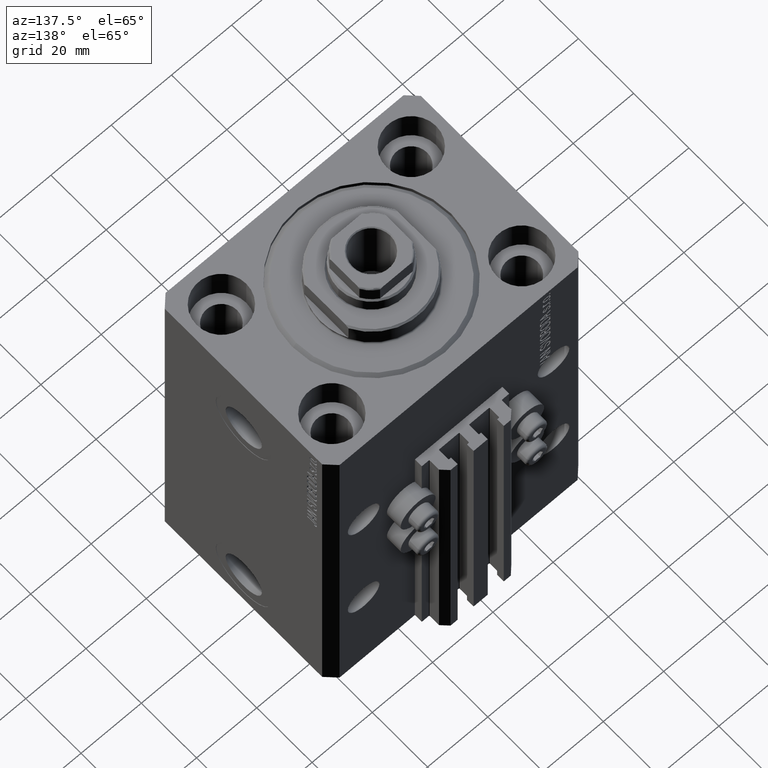
[diagram: clean part render]
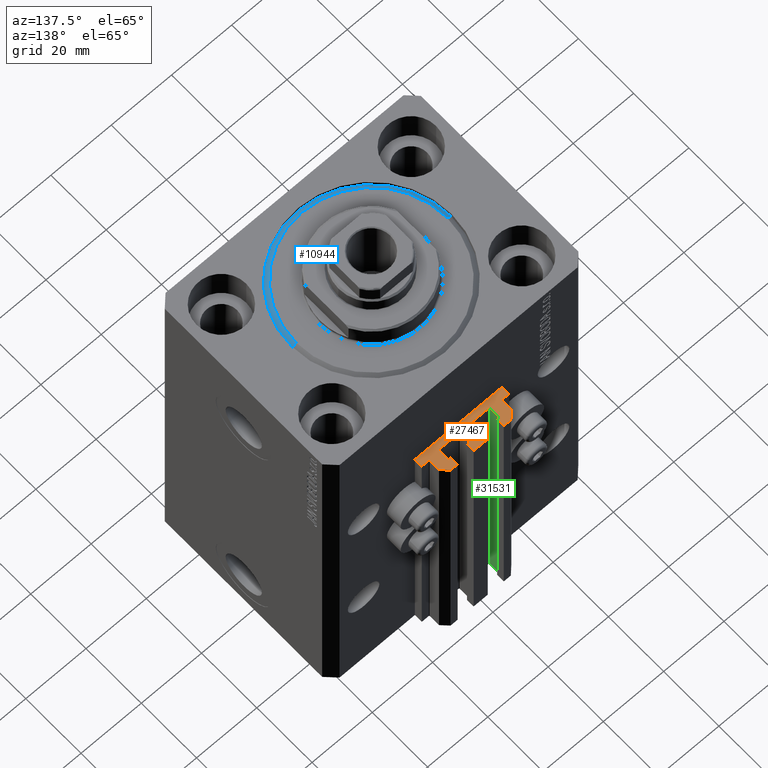
[diagram: same view with three faces highlighted in distinct colors, each labeled with its STEP entity id]
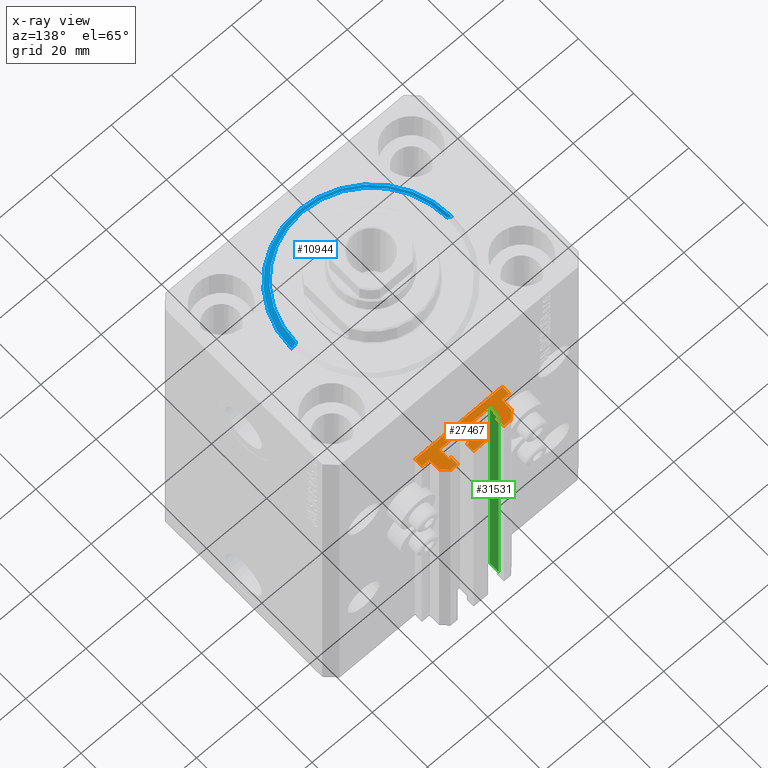
[diagram: x-ray of the same camera — body ghosted, the three highlighted faces saturated]
A machine part, auxiliary view with three faces highlighted in distinct colors.
The next image is the same camera in x-ray (body ghosted, the three faces saturated) — at least one of them is partly hidden behind the body in this view.
Their STEP definitions:

[orange] entity #27467 — the highlighted planar face has unit normal (0, 0, 1).
#34 = CIRCLE ( 'NONE', #22517, 0.1999999999999996503 ) ;
#104 = VECTOR ( 'NONE', #128, 1000.000000000000000 ) ;
#128 = DIRECTION ( 'NONE',  ( -1.000000000000000000, 0.000000000000000000, 0.000000000000000000 ) ) ;
#564 = CARTESIAN_POINT ( 'NONE',  ( -12.20000000000000107, 33.99999999999998579, -33.00000000000000000 ) ) ;
#873 = ORIENTED_EDGE ( 'NONE', *, *, #39922, .F. ) ;
#1253 = ORIENTED_EDGE ( 'NONE', *, *, #28621, .T. ) ;
#1461 = VERTEX_POINT ( 'NONE', #44052 ) ;
#1554 = EDGE_CURVE ( 'NONE', #22786, #31319, #45975, .T. ) ;
#1580 = CARTESIAN_POINT ( 'NONE',  ( 2.349999999999999645, 37.10000000000000853, -33.00000000000000000 ) ) ;
#1654 = VERTEX_POINT ( 'NONE', #17257 ) ;
#1890 = VECTOR ( 'NONE', #25414, 1000.000000000000000 ) ;
#2167 = CARTESIAN_POINT ( 'NONE',  ( 7.649999999999998579, 39.50000000000002132, -33.00000000000000000 ) ) ;
#2306 = DIRECTION ( 'NONE',  ( 0.000000000000000000, 1.000000000000000000, 0.000000000000000000 ) ) ;
#2311 = DIRECTION ( 'NONE',  ( 1.000000000000000000, 0.000000000000000000, 0.000000000000000000 ) ) ;
#2381 = EDGE_CURVE ( 'NONE', #34654, #41135, #37789, .T. ) ;
#2391 = CARTESIAN_POINT ( 'NONE',  ( -1.800000000000000933, 33.70000000000000284, -33.00000000000000000 ) ) ;
#2550 = CARTESIAN_POINT ( 'NONE',  ( 7.649999999999998579, 39.50000000000002132, -33.00000000000000000 ) ) ;
#3139 = FACE_OUTER_BOUND ( 'NONE', #33289, .T. ) ;
#3193 = CARTESIAN_POINT ( 'NONE',  ( 1.600000000000000533, 36.90000000000000568, -33.00000000000000000 ) ) ;
#3740 = DIRECTION ( 'NONE',  ( -1.000000000000000000, 0.000000000000000000, 0.000000000000000000 ) ) ;
#4052 = LINE ( 'NONE', #11824, #38299 ) ;
#4413 = DIRECTION ( 'NONE',  ( 0.000000000000000000, 1.000000000000000000, 0.000000000000000000 ) ) ;
#4427 = VECTOR ( 'NONE', #22873, 1000.000000000000000 ) ;
#4650 = LINE ( 'NONE', #45257, #35884 ) ;
#4674 = VERTEX_POINT ( 'NONE', #16666 ) ;
#4761 = CARTESIAN_POINT ( 'NONE',  ( -1.800000000000000933, 33.50000000000000000, -33.00000000000000000 ) ) ;
#4879 = DIRECTION ( 'NONE',  ( 0.000000000000000000, -1.000000000000000000, 0.000000000000000000 ) ) ;
#5132 = CARTESIAN_POINT ( 'NONE',  ( 12.00000000000000000, 37.50000000000002132, -33.00000000000000000 ) ) ;
#5292 = LINE ( 'NONE', #35912, #19699 ) ;
#5623 = VECTOR ( 'NONE', #38216, 1000.000000000000114 ) ;
#5629 = EDGE_CURVE ( 'NONE', #1461, #28818, #42952, .T. ) ;
#5708 = VECTOR ( 'NONE', #10399, 1000.000000000000000 ) ;
#5766 = CARTESIAN_POINT ( 'NONE',  ( 1.800000000000000933, 37.10000000000000853, -33.00000000000000000 ) ) ;
#5990 = CARTESIAN_POINT ( 'NONE',  ( -2.350000000000003642, 39.50000000000000711, -33.00000000000000000 ) ) ;
#6078 = CARTESIAN_POINT ( 'NONE',  ( 2.349999999999999645, 37.10000000000000853, -33.00000000000000000 ) ) ;
#6305 = ORIENTED_EDGE ( 'NONE', *, *, #8533, .T. ) ;
#6401 = DIRECTION ( 'NONE',  ( 1.000000000000000000, 0.000000000000000000, 0.000000000000000000 ) ) ;
#6437 = DIRECTION ( 'NONE',  ( 0.000000000000000000, 0.000000000000000000, 1.000000000000000000 ) ) ;
#6442 = VECTOR ( 'NONE', #35210, 1000.000000000000000 ) ;
#6529 = ORIENTED_EDGE ( 'NONE', *, *, #31338, .T. ) ;
#6534 = CIRCLE ( 'NONE', #46142, 0.2000000000000040079 ) ;
#6932 = VECTOR ( 'NONE', #2311, 1000.000000000000000 ) ;
#7225 = EDGE_CURVE ( 'NONE', #40958, #27081, #20187, .T. ) ;
#7345 = CARTESIAN_POINT ( 'NONE',  ( -1.600000000000000533, 36.90000000000000568, -33.00000000000000000 ) ) ;
#7483 = EDGE_CURVE ( 'NONE', #38278, #28818, #12305, .T. ) ;
#7489 = CIRCLE ( 'NONE', #30003, 0.1999999999999987899 ) ;
#7618 = ORIENTED_EDGE ( 'NONE', *, *, #39048, .T. ) ;
#8053 = CARTESIAN_POINT ( 'NONE',  ( -2.350000000000003197, 37.10000000000000853, -33.00000000000000000 ) ) ;
#8533 = EDGE_CURVE ( 'NONE', #33669, #46460, #37331, .T. ) ;
#8562 = VERTEX_POINT ( 'NONE', #17104 ) ;
#8761 = EDGE_CURVE ( 'NONE', #29670, #19595, #28782, .T. ) ;
#8773 = CARTESIAN_POINT ( 'NONE',  ( 2.349999999999999645, 39.50000000000000711, -33.00000000000000000 ) ) ;
#9507 = VERTEX_POINT ( 'NONE', #45657 ) ;
#9842 = DIRECTION ( 'NONE',  ( 1.000000000000000000, 0.000000000000000000, 0.000000000000000000 ) ) ;
#10006 = ORIENTED_EDGE ( 'NONE', *, *, #8761, .F. ) ;
#10383 = EDGE_CURVE ( 'NONE', #19556, #27674, #24723, .T. ) ;
#10399 = DIRECTION ( 'NONE',  ( 0.000000000000000000, -1.000000000000000000, 0.000000000000000000 ) ) ;
#10408 = VECTOR ( 'NONE', #46825, 1000.000000000000000 ) ;
#10417 = CARTESIAN_POINT ( 'NONE',  ( -8.199999999999999289, 37.09999999999999432, -33.00000000000000000 ) ) ;
#10800 = DIRECTION ( 'NONE',  ( 0.000000000000000000, 0.000000000000000000, 1.000000000000000000 ) ) ;
#11102 = DIRECTION ( 'NONE',  ( -5.421010862427508365E-16, -1.000000000000000000, 0.000000000000000000 ) ) ;
#11258 = CARTESIAN_POINT ( 'NONE',  ( 7.649999999999998579, 37.10000000000002274, -33.00000000000000000 ) ) ;
#11542 = DIRECTION ( 'NONE',  ( 0.000000000000000000, 0.000000000000000000, 1.000000000000000000 ) ) ;
#11739 = VERTEX_POINT ( 'NONE', #14384 ) ;
#11820 = EDGE_CURVE ( 'NONE', #4674, #24418, #4650, .T. ) ;
#11824 = CARTESIAN_POINT ( 'NONE',  ( 8.400000000000000355, 36.90000000000001279, -33.00000000000000000 ) ) ;
#11826 = VERTEX_POINT ( 'NONE', #15580 ) ;
#11875 = DIRECTION ( 'NONE',  ( 0.000000000000000000, 0.000000000000000000, 1.000000000000000000 ) ) ;
#11943 = EDGE_CURVE ( 'NONE', #30417, #1654, #27476, .T. ) ;
#12305 = LINE ( 'NONE', #1580, #45044 ) ;
#12373 = LINE ( 'NONE', #23543, #23713 ) ;
#12453 = EDGE_CURVE ( 'NONE', #45040, #11739, #32012, .T. ) ;
#12566 = CARTESIAN_POINT ( 'NONE',  ( -8.399999999999996803, 33.70000000000000284, -33.00000000000000000 ) ) ;
#12747 = LINE ( 'NONE', #23912, #23552 ) ;
#12757 = ORIENTED_EDGE ( 'NONE', *, *, #19025, .T. ) ;
#12807 = DIRECTION ( 'NONE',  ( -1.084202172485506406E-15, 1.000000000000000000, 0.000000000000000000 ) ) ;
#12891 = LINE ( 'NONE', #2167, #42735 ) ;
#13184 = DIRECTION ( 'NONE',  ( -0.7071067811865472397, -0.7071067811865479058, 0.000000000000000000 ) ) ;
#13259 = CARTESIAN_POINT ( 'NONE',  ( -1.800000000000000933, 36.90000000000000568, -33.00000000000000000 ) ) ;
#13262 = EDGE_CURVE ( 'NONE', #20999, #27674, #46808, .T. ) ;
#13562 = CARTESIAN_POINT ( 'NONE',  ( 1.600000000000000533, 33.70000000000000284, -33.00000000000000000 ) ) ;
#13572 = VECTOR ( 'NONE', #13184, 999.9999999999998863 ) ;
#13805 = CARTESIAN_POINT ( 'NONE',  ( 12.20000000000000107, 34.20000000000002416, -33.00000000000000000 ) ) ;
#13858 = VERTEX_POINT ( 'NONE', #19892 ) ;
#13952 = EDGE_CURVE ( 'NONE', #24968, #40041, #42765, .T. ) ;
#13993 = EDGE_CURVE ( 'NONE', #14417, #27081, #28374, .T. ) ;
#14066 = LINE ( 'NONE', #10417, #21128 ) ;
#14384 = CARTESIAN_POINT ( 'NONE',  ( 8.200000000000001066, 37.10000000000002274, -33.00000000000000000 ) ) ;
#14417 = VERTEX_POINT ( 'NONE', #47555 ) ;
#14431 = CARTESIAN_POINT ( 'NONE',  ( -8.199999999999997513, 33.70000000000000284, -33.00000000000000000 ) ) ;
#14498 = DIRECTION ( 'NONE',  ( 0.000000000000000000, 0.000000000000000000, 1.000000000000000000 ) ) ;
#14929 = AXIS2_PLACEMENT_3D ( 'NONE', #26273, #21884, #33332 ) ;
#15580 = CARTESIAN_POINT ( 'NONE',  ( -1.600000000000001421, 36.90000000000000568, -33.00000000000000000 ) ) ;
#15784 = ORIENTED_EDGE ( 'NONE', *, *, #2381, .T. ) ;
#16374 = CARTESIAN_POINT ( 'NONE',  ( 11.99999999999999822, 34.20000000000002416, -33.00000000000000000 ) ) ;
#16586 = EDGE_CURVE ( 'NONE', #24656, #24287, #14066, .T. ) ;
#16631 = CARTESIAN_POINT ( 'NONE',  ( -8.199999999999999289, 37.09999999999999432, -33.00000000000000000 ) ) ;
#16666 = CARTESIAN_POINT ( 'NONE',  ( -12.00000000000000000, 37.49999999999999289, -33.00000000000000000 ) ) ;
#16714 = AXIS2_PLACEMENT_3D ( 'NONE', #20566, #11542, #29295 ) ;
#17058 = CARTESIAN_POINT ( 'NONE',  ( -10.00000000000000000, 39.49999999999999289, -33.00000000000000000 ) ) ;
#17104 = CARTESIAN_POINT ( 'NONE',  ( -1.600000000000000755, 33.70000000000000284, -33.00000000000000000 ) ) ;
#17257 = CARTESIAN_POINT ( 'NONE',  ( 9.999999999999998224, 39.50000000000002132, -33.00000000000000000 ) ) ;
#17603 = ORIENTED_EDGE ( 'NONE', *, *, #12453, .F. ) ;
#17682 = DIRECTION ( 'NONE',  ( 1.000000000000000000, 0.000000000000000000, 0.000000000000000000 ) ) ;
#17974 = PLANE ( 'NONE',  #42464 ) ;
#17997 = ORIENTED_EDGE ( 'NONE', *, *, #11943, .T. ) ;
#18047 = ORIENTED_EDGE ( 'NONE', *, *, #5629, .F. ) ;
#18508 = EDGE_CURVE ( 'NONE', #1461, #22786, #29153, .T. ) ;
#18839 = EDGE_CURVE ( 'NONE', #29496, #40041, #22710, .T. ) ;
#18864 = VECTOR ( 'NONE', #4413, 1000.000000000000000 ) ;
#18937 = EDGE_CURVE ( 'NONE', #45040, #19595, #4052, .T. ) ;
#19025 = EDGE_CURVE ( 'NONE', #42204, #11739, #30774, .T. ) ;
#19044 = ORIENTED_EDGE ( 'NONE', *, *, #19186, .T. ) ;
#19186 = EDGE_CURVE ( 'NONE', #28008, #24968, #27003, .T. ) ;
#19289 = ORIENTED_EDGE ( 'NONE', *, *, #19626, .T. ) ;
#19444 = CARTESIAN_POINT ( 'NONE',  ( 8.400000000000003908, 36.90000000000001279, -33.00000000000000000 ) ) ;
#19556 = VERTEX_POINT ( 'NONE', #42067 ) ;
#19595 = VERTEX_POINT ( 'NONE', #31565 ) ;
#19607 = CARTESIAN_POINT ( 'NONE',  ( 7.649999999999998579, 37.10000000000002274, -33.00000000000000000 ) ) ;
#19626 = EDGE_CURVE ( 'NONE', #41135, #13858, #28149, .T. ) ;
#19699 = VECTOR ( 'NONE', #20583, 1000.000000000000000 ) ;
#19892 = CARTESIAN_POINT ( 'NONE',  ( -14.50000000000000000, 31.50000000000000000, -33.00000000000000000 ) ) ;
#19987 = ORIENTED_EDGE ( 'NONE', *, *, #16586, .T. ) ;
#19999 = ORIENTED_EDGE ( 'NONE', *, *, #18937, .T. ) ;
#20187 = CIRCLE ( 'NONE', #38863, 0.1999999999999998723 ) ;
#20251 = AXIS2_PLACEMENT_3D ( 'NONE', #46308, #27794, #24153 ) ;
#20270 = EDGE_CURVE ( 'NONE', #29670, #21106, #12747, .T. ) ;
#20566 = CARTESIAN_POINT ( 'NONE',  ( 1.800000000000000933, 33.70000000000000284, -33.00000000000000000 ) ) ;
#20583 = DIRECTION ( 'NONE',  ( 1.000000000000000000, 0.000000000000000000, 0.000000000000000000 ) ) ;
#20792 = ORIENTED_EDGE ( 'NONE', *, *, #27961, .F. ) ;
#20952 = EDGE_CURVE ( 'NONE', #13858, #28008, #5292, .T. ) ;
#20999 = VERTEX_POINT ( 'NONE', #36624 ) ;
#21006 = ORIENTED_EDGE ( 'NONE', *, *, #20270, .T. ) ;
#21089 = DIRECTION ( 'NONE',  ( 0.000000000000000000, 1.000000000000000000, 0.000000000000000000 ) ) ;
#21106 = VERTEX_POINT ( 'NONE', #43448 ) ;
#21128 = VECTOR ( 'NONE', #28891, 1000.000000000000000 ) ;
#21328 = DIRECTION ( 'NONE',  ( 0.000000000000000000, 0.000000000000000000, 1.000000000000000000 ) ) ;
#21405 = CARTESIAN_POINT ( 'NONE',  ( 12.00000000000000000, 37.50000000000002132, -33.00000000000000000 ) ) ;
#21556 = ORIENTED_EDGE ( 'NONE', *, *, #28450, .T. ) ;
#21730 = CARTESIAN_POINT ( 'NONE',  ( -8.199999999999999289, 36.89999999999999858, -33.00000000000000000 ) ) ;
#21884 = DIRECTION ( 'NONE',  ( 0.000000000000000000, 0.000000000000000000, 1.000000000000000000 ) ) ;
#22273 = ORIENTED_EDGE ( 'NONE', *, *, #13952, .T. ) ;
#22517 = AXIS2_PLACEMENT_3D ( 'NONE', #13259, #6437, #9842 ) ;
#22701 = DIRECTION ( 'NONE',  ( -1.000000000000000000, 0.000000000000000000, 0.000000000000000000 ) ) ;
#22710 = CIRCLE ( 'NONE', #24291, 0.2000000000000022593 ) ;
#22715 = CARTESIAN_POINT ( 'NONE',  ( -14.50000000000000000, 33.99999999999998579, -33.00000000000000000 ) ) ;
#22729 = VECTOR ( 'NONE', #21089, 1000.000000000000000 ) ;
#22786 = VERTEX_POINT ( 'NONE', #40191 ) ;
#22838 = ORIENTED_EDGE ( 'NONE', *, *, #7225, .F. ) ;
#22873 = DIRECTION ( 'NONE',  ( -6.776263578034385456E-17, -1.000000000000000000, 0.000000000000000000 ) ) ;
#23347 = DIRECTION ( 'NONE',  ( 1.000000000000000000, 0.000000000000000000, 0.000000000000000000 ) ) ;
#23365 = ORIENTED_EDGE ( 'NONE', *, *, #11820, .T. ) ;
#23543 = CARTESIAN_POINT ( 'NONE',  ( 12.00000000000000178, 34.20000000000002416, -33.00000000000000000 ) ) ;
#23552 = VECTOR ( 'NONE', #38787, 1000.000000000000000 ) ;
#23713 = VECTOR ( 'NONE', #34741, 1000.000000000000000 ) ;
#23912 = CARTESIAN_POINT ( 'NONE',  ( 8.199999999999999289, 33.50000000000000000, -33.00000000000000000 ) ) ;
#24153 = DIRECTION ( 'NONE',  ( 1.000000000000000000, 0.000000000000000000, 0.000000000000000000 ) ) ;
#24287 = VERTEX_POINT ( 'NONE', #33964 ) ;
#24291 = AXIS2_PLACEMENT_3D ( 'NONE', #13805, #21328, #32283 ) ;
#24405 = EDGE_CURVE ( 'NONE', #14417, #21106, #27564, .T. ) ;
#24418 = VERTEX_POINT ( 'NONE', #40517 ) ;
#24609 = CARTESIAN_POINT ( 'NONE',  ( -10.00000000000000000, 39.49999999999999289, -33.00000000000000000 ) ) ;
#24656 = VERTEX_POINT ( 'NONE', #16631 ) ;
#24723 = LINE ( 'NONE', #4761, #104 ) ;
#24951 = EDGE_CURVE ( 'NONE', #19556, #8562, #32267, .T. ) ;
#24968 = VERTEX_POINT ( 'NONE', #37160 ) ;
#25284 = AXIS2_PLACEMENT_3D ( 'NONE', #2391, #39642, #35963 ) ;
#25414 = DIRECTION ( 'NONE',  ( 1.000000000000000000, 0.000000000000000000, 0.000000000000000000 ) ) ;
#25748 = CARTESIAN_POINT ( 'NONE',  ( -2.350000000000003642, 39.50000000000000711, -33.00000000000000000 ) ) ;
#26253 = ORIENTED_EDGE ( 'NONE', *, *, #7483, .T. ) ;
#26273 = CARTESIAN_POINT ( 'NONE',  ( 8.200000000000001066, 36.90000000000001279, -33.00000000000000000 ) ) ;
#27003 = LINE ( 'NONE', #41646, #18864 ) ;
#27081 = VERTEX_POINT ( 'NONE', #3193 ) ;
#27467 = ADVANCED_FACE ( 'NONE', ( #3139 ), #17974, .T. ) ;
#27476 = LINE ( 'NONE', #5132, #5623 ) ;
#27564 = CIRCLE ( 'NONE', #16714, 0.1999999999999998723 ) ;
#27674 = VERTEX_POINT ( 'NONE', #43477 ) ;
#27794 = DIRECTION ( 'NONE',  ( 0.000000000000000000, 0.000000000000000000, 1.000000000000000000 ) ) ;
#27820 = LINE ( 'NONE', #42924, #10408 ) ;
#27961 = EDGE_CURVE ( 'NONE', #24656, #9507, #7489, .T. ) ;
#27985 = VECTOR ( 'NONE', #22701, 1000.000000000000000 ) ;
#28008 = VERTEX_POINT ( 'NONE', #32455 ) ;
#28149 = LINE ( 'NONE', #40329, #5708 ) ;
#28359 = VECTOR ( 'NONE', #46678, 1000.000000000000000 ) ;
#28374 = LINE ( 'NONE', #13562, #22729 ) ;
#28450 = EDGE_CURVE ( 'NONE', #29496, #30417, #12373, .T. ) ;
#28621 = EDGE_CURVE ( 'NONE', #1654, #31670, #32286, .T. ) ;
#28628 = CARTESIAN_POINT ( 'NONE',  ( 9.999999999999998224, 39.50000000000002132, -33.00000000000000000 ) ) ;
#28761 = CARTESIAN_POINT ( 'NONE',  ( -12.20000000000000107, 34.19999999999999574, -33.00000000000000000 ) ) ;
#28782 = CIRCLE ( 'NONE', #20251, 0.1999999999999987899 ) ;
#28818 = VERTEX_POINT ( 'NONE', #8773 ) ;
#28891 = DIRECTION ( 'NONE',  ( 1.000000000000000000, 0.000000000000000000, 0.000000000000000000 ) ) ;
#29153 = LINE ( 'NONE', #25748, #32829 ) ;
#29295 = DIRECTION ( 'NONE',  ( 1.000000000000000000, 0.000000000000000000, 0.000000000000000000 ) ) ;
#29458 = DIRECTION ( 'NONE',  ( 0.000000000000000000, -1.000000000000000000, 0.000000000000000000 ) ) ;
#29496 = VERTEX_POINT ( 'NONE', #16374 ) ;
#29670 = VERTEX_POINT ( 'NONE', #41652 ) ;
#29734 = ORIENTED_EDGE ( 'NONE', *, *, #13993, .T. ) ;
#30003 = AXIS2_PLACEMENT_3D ( 'NONE', #21730, #10800, #36830 ) ;
#30417 = VERTEX_POINT ( 'NONE', #21405 ) ;
#30774 = LINE ( 'NONE', #19607, #36725 ) ;
#30849 = CARTESIAN_POINT ( 'NONE',  ( -7.650000000000002132, 39.49999999999999289, -33.00000000000000000 ) ) ;
#31064 = DIRECTION ( 'NONE',  ( 1.000000000000000000, 0.000000000000000000, -0.000000000000000000 ) ) ;
#31319 = VERTEX_POINT ( 'NONE', #40923 ) ;
#31338 = EDGE_CURVE ( 'NONE', #11826, #8562, #33356, .T. ) ;
#31565 = CARTESIAN_POINT ( 'NONE',  ( 8.400000000000000355, 33.70000000000000995, -33.00000000000000000 ) ) ;
#31670 = VERTEX_POINT ( 'NONE', #2550 ) ;
#32012 = CIRCLE ( 'NONE', #14929, 0.2000000000000040079 ) ;
#32267 = CIRCLE ( 'NONE', #25284, 0.1999999999999994282 ) ;
#32275 = CARTESIAN_POINT ( 'NONE',  ( 14.49999999999999645, 34.00000000000001421, -33.00000000000000000 ) ) ;
#32283 = DIRECTION ( 'NONE',  ( 1.000000000000000000, 0.000000000000000000, 0.000000000000000000 ) ) ;
#32286 = LINE ( 'NONE', #28628, #28359 ) ;
#32455 = CARTESIAN_POINT ( 'NONE',  ( 14.49999999999999645, 31.50000000000000000, -33.00000000000000000 ) ) ;
#32811 = CARTESIAN_POINT ( 'NONE',  ( 12.20000000000000107, 34.20000000000002416, -33.00000000000000000 ) ) ;
#32829 = VECTOR ( 'NONE', #44007, 1000.000000000000000 ) ;
#32924 = DIRECTION ( 'NONE',  ( 0.000000000000000000, 0.000000000000000000, 1.000000000000000000 ) ) ;
#33289 = EDGE_LOOP ( 'NONE', ( #19289, #35873, #19044, #22273, #36743, #21556, #17997, #1253, #7618, #12757, #17603, #19999, #10006, #21006, #45879, #29734, #22838, #47700, #26253, #18047, #42140, #34579, #873, #6529, #46539, #35855, #46020, #38729, #20792, #19987, #44732, #6305, #38882, #23365, #39572, #15784 ) ) ;
#33332 = DIRECTION ( 'NONE',  ( 1.000000000000000000, 0.000000000000000000, 0.000000000000000000 ) ) ;
#33341 = VECTOR ( 'NONE', #3740, 1000.000000000000000 ) ;
#33356 = LINE ( 'NONE', #7345, #4427 ) ;
#33663 = CARTESIAN_POINT ( 'NONE',  ( -7.650000000000002132, 39.49999999999999289, -33.00000000000000000 ) ) ;
#33669 = VERTEX_POINT ( 'NONE', #30849 ) ;
#33964 = CARTESIAN_POINT ( 'NONE',  ( -7.650000000000002132, 37.09999999999999432, -33.00000000000000000 ) ) ;
#34579 = ORIENTED_EDGE ( 'NONE', *, *, #1554, .T. ) ;
#34654 = VERTEX_POINT ( 'NONE', #41606 ) ;
#34741 = DIRECTION ( 'NONE',  ( -5.256737805990328981E-16, 1.000000000000000000, 0.000000000000000000 ) ) ;
#35210 = DIRECTION ( 'NONE',  ( -1.000000000000000000, 0.000000000000000000, 0.000000000000000000 ) ) ;
#35855 = ORIENTED_EDGE ( 'NONE', *, *, #10383, .T. ) ;
#35873 = ORIENTED_EDGE ( 'NONE', *, *, #20952, .T. ) ;
#35884 = VECTOR ( 'NONE', #29458, 1000.000000000000000 ) ;
#35912 = CARTESIAN_POINT ( 'NONE',  ( -14.50000000000000000, 31.50000000000000000, -33.00000000000000000 ) ) ;
#35963 = DIRECTION ( 'NONE',  ( 1.000000000000000000, 0.000000000000000000, 0.000000000000000000 ) ) ;
#36579 = DIRECTION ( 'NONE',  ( 1.000000000000000000, 0.000000000000000000, 0.000000000000000000 ) ) ;
#36613 = LINE ( 'NONE', #40760, #1890 ) ;
#36624 = CARTESIAN_POINT ( 'NONE',  ( -8.399999999999996803, 33.70000000000000284, -33.00000000000000000 ) ) ;
#36725 = VECTOR ( 'NONE', #6401, 1000.000000000000000 ) ;
#36743 = ORIENTED_EDGE ( 'NONE', *, *, #18839, .F. ) ;
#36830 = DIRECTION ( 'NONE',  ( 1.000000000000000000, 0.000000000000000000, 0.000000000000000000 ) ) ;
#37160 = CARTESIAN_POINT ( 'NONE',  ( 14.49999999999999645, 34.00000000000001421, -33.00000000000000000 ) ) ;
#37331 = LINE ( 'NONE', #33663, #27985 ) ;
#37789 = LINE ( 'NONE', #564, #33341 ) ;
#38216 = DIRECTION ( 'NONE',  ( -0.7071067811865474617, 0.7071067811865474617, 0.000000000000000000 ) ) ;
#38278 = VERTEX_POINT ( 'NONE', #6078 ) ;
#38299 = VECTOR ( 'NONE', #11102, 1000.000000000000000 ) ;
#38729 = ORIENTED_EDGE ( 'NONE', *, *, #44234, .T. ) ;
#38787 = DIRECTION ( 'NONE',  ( -1.000000000000000000, 0.000000000000000000, 0.000000000000000000 ) ) ;
#38863 = AXIS2_PLACEMENT_3D ( 'NONE', #40084, #14498, #17682 ) ;
#38882 = ORIENTED_EDGE ( 'NONE', *, *, #45649, .T. ) ;
#39048 = EDGE_CURVE ( 'NONE', #31670, #42204, #12891, .T. ) ;
#39572 = ORIENTED_EDGE ( 'NONE', *, *, #43683, .F. ) ;
#39642 = DIRECTION ( 'NONE',  ( 0.000000000000000000, 0.000000000000000000, 1.000000000000000000 ) ) ;
#39922 = EDGE_CURVE ( 'NONE', #11826, #31319, #34, .T. ) ;
#40041 = VERTEX_POINT ( 'NONE', #43874 ) ;
#40084 = CARTESIAN_POINT ( 'NONE',  ( 1.800000000000000933, 36.90000000000000568, -33.00000000000000000 ) ) ;
#40191 = CARTESIAN_POINT ( 'NONE',  ( -2.350000000000003197, 37.10000000000000853, -33.00000000000000000 ) ) ;
#40329 = CARTESIAN_POINT ( 'NONE',  ( -14.50000000000000000, 33.99999999999998579, -33.00000000000000000 ) ) ;
#40517 = CARTESIAN_POINT ( 'NONE',  ( -12.00000000000000000, 34.19999999999999574, -33.00000000000000000 ) ) ;
#40760 = CARTESIAN_POINT ( 'NONE',  ( 1.800000000000000933, 37.10000000000000853, -33.00000000000000000 ) ) ;
#40923 = CARTESIAN_POINT ( 'NONE',  ( -1.800000000000000933, 37.10000000000000853, -33.00000000000000000 ) ) ;
#40958 = VERTEX_POINT ( 'NONE', #5766 ) ;
#41135 = VERTEX_POINT ( 'NONE', #22715 ) ;
#41606 = CARTESIAN_POINT ( 'NONE',  ( -12.20000000000000107, 33.99999999999998579, -33.00000000000000000 ) ) ;
#41646 = CARTESIAN_POINT ( 'NONE',  ( 14.49999999999999645, 31.50000000000000000, -33.00000000000000000 ) ) ;
#41652 = CARTESIAN_POINT ( 'NONE',  ( 8.199999999999999289, 33.50000000000000000, -33.00000000000000000 ) ) ;
#42067 = CARTESIAN_POINT ( 'NONE',  ( -1.800000000000000933, 33.50000000000000000, -33.00000000000000000 ) ) ;
#42140 = ORIENTED_EDGE ( 'NONE', *, *, #18508, .T. ) ;
#42204 = VERTEX_POINT ( 'NONE', #11258 ) ;
#42464 = AXIS2_PLACEMENT_3D ( 'NONE', #32811, #11875, #31064 ) ;
#42735 = VECTOR ( 'NONE', #4879, 1000.000000000000000 ) ;
#42765 = LINE ( 'NONE', #32275, #6442 ) ;
#42924 = CARTESIAN_POINT ( 'NONE',  ( -7.650000000000002132, 37.09999999999999432, -33.00000000000000000 ) ) ;
#42952 = LINE ( 'NONE', #5990, #6932 ) ;
#43103 = EDGE_CURVE ( 'NONE', #24287, #33669, #27820, .T. ) ;
#43376 = DIRECTION ( 'NONE',  ( 1.000000000000000000, 0.000000000000000000, 0.000000000000000000 ) ) ;
#43448 = CARTESIAN_POINT ( 'NONE',  ( 1.800000000000000933, 33.50000000000000000, -33.00000000000000000 ) ) ;
#43477 = CARTESIAN_POINT ( 'NONE',  ( -8.199999999999997513, 33.50000000000000000, -33.00000000000000000 ) ) ;
#43683 = EDGE_CURVE ( 'NONE', #34654, #24418, #6534, .T. ) ;
#43731 = AXIS2_PLACEMENT_3D ( 'NONE', #14431, #32924, #36579 ) ;
#43874 = CARTESIAN_POINT ( 'NONE',  ( 12.20000000000000107, 34.00000000000001421, -33.00000000000000000 ) ) ;
#44007 = DIRECTION ( 'NONE',  ( 1.807003620809174632E-16, -1.000000000000000000, 0.000000000000000000 ) ) ;
#44052 = CARTESIAN_POINT ( 'NONE',  ( -2.350000000000003642, 39.50000000000000711, -33.00000000000000000 ) ) ;
#44085 = DIRECTION ( 'NONE',  ( 0.000000000000000000, 0.000000000000000000, 1.000000000000000000 ) ) ;
#44234 = EDGE_CURVE ( 'NONE', #20999, #9507, #45888, .T. ) ;
#44266 = EDGE_CURVE ( 'NONE', #40958, #38278, #36613, .T. ) ;
#44732 = ORIENTED_EDGE ( 'NONE', *, *, #43103, .T. ) ;
#45040 = VERTEX_POINT ( 'NONE', #19444 ) ;
#45044 = VECTOR ( 'NONE', #2306, 1000.000000000000000 ) ;
#45257 = CARTESIAN_POINT ( 'NONE',  ( -12.00000000000000000, 37.49999999999999289, -33.00000000000000000 ) ) ;
#45649 = EDGE_CURVE ( 'NONE', #46460, #4674, #46756, .T. ) ;
#45657 = CARTESIAN_POINT ( 'NONE',  ( -8.400000000000000355, 36.89999999999999858, -33.00000000000000000 ) ) ;
#45879 = ORIENTED_EDGE ( 'NONE', *, *, #24405, .F. ) ;
#45888 = LINE ( 'NONE', #12566, #46948 ) ;
#45975 = LINE ( 'NONE', #8053, #48095 ) ;
#46020 = ORIENTED_EDGE ( 'NONE', *, *, #13262, .F. ) ;
#46142 = AXIS2_PLACEMENT_3D ( 'NONE', #28761, #44085, #43376 ) ;
#46308 = CARTESIAN_POINT ( 'NONE',  ( 8.199999999999999289, 33.70000000000000284, -33.00000000000000000 ) ) ;
#46460 = VERTEX_POINT ( 'NONE', #24609 ) ;
#46539 = ORIENTED_EDGE ( 'NONE', *, *, #24951, .F. ) ;
#46678 = DIRECTION ( 'NONE',  ( -1.000000000000000000, 0.000000000000000000, 0.000000000000000000 ) ) ;
#46756 = LINE ( 'NONE', #17058, #13572 ) ;
#46808 = CIRCLE ( 'NONE', #43731, 0.1999999999999987899 ) ;
#46825 = DIRECTION ( 'NONE',  ( 0.000000000000000000, 1.000000000000000000, 0.000000000000000000 ) ) ;
#46948 = VECTOR ( 'NONE', #12807, 1000.000000000000000 ) ;
#47555 = CARTESIAN_POINT ( 'NONE',  ( 1.600000000000001421, 33.70000000000000284, -33.00000000000000000 ) ) ;
#47700 = ORIENTED_EDGE ( 'NONE', *, *, #44266, .T. ) ;
#48095 = VECTOR ( 'NONE', #23347, 1000.000000000000000 ) ;

[blue] entity #10944 — the highlighted conical surface has half-angle 45 deg.
#1137 = ORIENTED_EDGE ( 'NONE', *, *, #17089, .F. ) ;
#2517 = CARTESIAN_POINT ( 'NONE',  ( 0.000000000000000000, 0.000000000000000000, 1.500000000000018652 ) ) ;
#3331 = LINE ( 'NONE', #12015, #9880 ) ;
#3504 = DIRECTION ( 'NONE',  ( 1.000000000000000000, 0.000000000000000000, 0.000000000000000000 ) ) ;
#3526 = CARTESIAN_POINT ( 'NONE',  ( 24.99999999999998224, 0.000000000000000000, 0.000000000000000000 ) ) ;
#4008 = CONICAL_SURFACE ( 'NONE', #16428, 26.50000000000000355, 0.7853981633974495002 ) ;
#4160 = ORIENTED_EDGE ( 'NONE', *, *, #32845, .F. ) ;
#6021 = DIRECTION ( 'NONE',  ( 0.7071067811865483499, 0.000000000000000000, 0.7071067811865466846 ) ) ;
#6150 = DIRECTION ( 'NONE',  ( 1.000000000000000000, 0.000000000000000000, 0.000000000000000000 ) ) ;
#7254 = ORIENTED_EDGE ( 'NONE', *, *, #31748, .F. ) ;
#9880 = VECTOR ( 'NONE', #40328, 1000.000000000000000 ) ;
#10944 = ADVANCED_FACE ( 'NONE', ( #17312 ), #4008, .T. ) ;
#12015 = CARTESIAN_POINT ( 'NONE',  ( -26.50000000000000355, 3.245314017740486554E-15, 1.500000000000018652 ) ) ;
#13907 = CARTESIAN_POINT ( 'NONE',  ( 0.000000000000000000, 0.000000000000000000, 1.500000000000018652 ) ) ;
#14918 = VERTEX_POINT ( 'NONE', #27070 ) ;
#16428 = AXIS2_PLACEMENT_3D ( 'NONE', #13907, #43817, #6150 ) ;
#16701 = LINE ( 'NONE', #31771, #39044 ) ;
#17089 = EDGE_CURVE ( 'NONE', #33635, #37095, #38232, .T. ) ;
#17312 = FACE_OUTER_BOUND ( 'NONE', #30838, .T. ) ;
#17557 = EDGE_CURVE ( 'NONE', #34172, #37095, #16701, .T. ) ;
#19113 = CARTESIAN_POINT ( 'NONE',  ( 26.50000000000000355, 3.245314017740486554E-15, 1.500000000000018652 ) ) ;
#21005 = DIRECTION ( 'NONE',  ( 1.000000000000000000, 0.000000000000000000, 0.000000000000000000 ) ) ;
#27070 = CARTESIAN_POINT ( 'NONE',  ( -24.99999999999998224, 3.153465507804433615E-15, 0.000000000000000000 ) ) ;
#29012 = DIRECTION ( 'NONE',  ( -0.000000000000000000, -0.000000000000000000, 1.000000000000000000 ) ) ;
#30838 = EDGE_LOOP ( 'NONE', ( #4160, #7254, #42359, #1137 ) ) ;
#31596 = CIRCLE ( 'NONE', #40938, 24.99999999999998224 ) ;
#31748 = EDGE_CURVE ( 'NONE', #34172, #14918, #31596, .T. ) ;
#31771 = CARTESIAN_POINT ( 'NONE',  ( 26.50000000000000355, 0.000000000000000000, 1.500000000000018652 ) ) ;
#32845 = EDGE_CURVE ( 'NONE', #14918, #33635, #3331, .T. ) ;
#33635 = VERTEX_POINT ( 'NONE', #38178 ) ;
#34172 = VERTEX_POINT ( 'NONE', #3526 ) ;
#36834 = DIRECTION ( 'NONE',  ( -0.000000000000000000, -0.000000000000000000, -1.000000000000000000 ) ) ;
#37095 = VERTEX_POINT ( 'NONE', #19113 ) ;
#37427 = AXIS2_PLACEMENT_3D ( 'NONE', #2517, #29012, #21005 ) ;
#38178 = CARTESIAN_POINT ( 'NONE',  ( -26.50000000000000355, 0.000000000000000000, 1.500000000000018652 ) ) ;
#38232 = CIRCLE ( 'NONE', #37427, 26.50000000000000355 ) ;
#39044 = VECTOR ( 'NONE', #6021, 1000.000000000000000 ) ;
#40328 = DIRECTION ( 'NONE',  ( -0.7071067811865483499, 8.659560562354942719E-17, 0.7071067811865466846 ) ) ;
#40503 = CARTESIAN_POINT ( 'NONE',  ( 0.000000000000000000, 0.000000000000000000, 0.000000000000000000 ) ) ;
#40938 = AXIS2_PLACEMENT_3D ( 'NONE', #40503, #36834, #3504 ) ;
#42359 = ORIENTED_EDGE ( 'NONE', *, *, #17557, .T. ) ;
#43817 = DIRECTION ( 'NONE',  ( -0.000000000000000000, -0.000000000000000000, 1.000000000000000000 ) ) ;

[green] entity #31531 — the highlighted planar face has unit normal (1, 0, 0).
#822 = EDGE_CURVE ( 'NONE', #20105, #20999, #47671, .T. ) ;
#1226 = LINE ( 'NONE', #1948, #27189 ) ;
#1948 = CARTESIAN_POINT ( 'NONE',  ( -8.400000000000000355, 36.89999999999999858, -123.0000000000000000 ) ) ;
#4712 = ORIENTED_EDGE ( 'NONE', *, *, #822, .F. ) ;
#5017 = DIRECTION ( 'NONE',  ( -1.084202172485506603E-15, 1.000000000000000000, 0.000000000000000000 ) ) ;
#8034 = EDGE_CURVE ( 'NONE', #10601, #9507, #1226, .T. ) ;
#9507 = VERTEX_POINT ( 'NONE', #45657 ) ;
#10601 = VERTEX_POINT ( 'NONE', #46584 ) ;
#12029 = VECTOR ( 'NONE', #19921, 1000.000000000000000 ) ;
#12566 = CARTESIAN_POINT ( 'NONE',  ( -8.399999999999996803, 33.70000000000000284, -33.00000000000000000 ) ) ;
#12807 = DIRECTION ( 'NONE',  ( -1.084202172485506406E-15, 1.000000000000000000, 0.000000000000000000 ) ) ;
#13117 = CARTESIAN_POINT ( 'NONE',  ( -8.399999999999996803, 33.70000000000000284, -123.0000000000000000 ) ) ;
#13724 = AXIS2_PLACEMENT_3D ( 'NONE', #35155, #45624, #5017 ) ;
#15934 = FACE_OUTER_BOUND ( 'NONE', #18068, .T. ) ;
#18068 = EDGE_LOOP ( 'NONE', ( #19609, #4712, #41373, #18800 ) ) ;
#18800 = ORIENTED_EDGE ( 'NONE', *, *, #8034, .T. ) ;
#19064 = CARTESIAN_POINT ( 'NONE',  ( -8.399999999999996803, 33.70000000000000284, -123.0000000000000000 ) ) ;
#19609 = ORIENTED_EDGE ( 'NONE', *, *, #44234, .F. ) ;
#19921 = DIRECTION ( 'NONE',  ( -1.084202172485506406E-15, 1.000000000000000000, 0.000000000000000000 ) ) ;
#20105 = VERTEX_POINT ( 'NONE', #19064 ) ;
#20999 = VERTEX_POINT ( 'NONE', #36624 ) ;
#24086 = DIRECTION ( 'NONE',  ( 0.000000000000000000, 0.000000000000000000, 1.000000000000000000 ) ) ;
#24854 = EDGE_CURVE ( 'NONE', #20105, #10601, #42079, .T. ) ;
#27189 = VECTOR ( 'NONE', #24086, 1000.000000000000000 ) ;
#30770 = PLANE ( 'NONE',  #13724 ) ;
#31531 = ADVANCED_FACE ( 'NONE', ( #15934 ), #30770, .T. ) ;
#34875 = VECTOR ( 'NONE', #43537, 1000.000000000000000 ) ;
#35155 = CARTESIAN_POINT ( 'NONE',  ( -8.399999999999996803, 33.70000000000000284, -123.0000000000000000 ) ) ;
#36231 = CARTESIAN_POINT ( 'NONE',  ( -8.399999999999996803, 33.70000000000000284, -123.0000000000000000 ) ) ;
#36624 = CARTESIAN_POINT ( 'NONE',  ( -8.399999999999996803, 33.70000000000000284, -33.00000000000000000 ) ) ;
#41373 = ORIENTED_EDGE ( 'NONE', *, *, #24854, .T. ) ;
#42079 = LINE ( 'NONE', #13117, #12029 ) ;
#43537 = DIRECTION ( 'NONE',  ( 0.000000000000000000, 0.000000000000000000, 1.000000000000000000 ) ) ;
#44234 = EDGE_CURVE ( 'NONE', #20999, #9507, #45888, .T. ) ;
#45624 = DIRECTION ( 'NONE',  ( 1.000000000000000000, 1.084202172485506603E-15, -0.000000000000000000 ) ) ;
#45657 = CARTESIAN_POINT ( 'NONE',  ( -8.400000000000000355, 36.89999999999999858, -33.00000000000000000 ) ) ;
#45888 = LINE ( 'NONE', #12566, #46948 ) ;
#46584 = CARTESIAN_POINT ( 'NONE',  ( -8.400000000000000355, 36.89999999999999858, -123.0000000000000000 ) ) ;
#46948 = VECTOR ( 'NONE', #12807, 1000.000000000000000 ) ;
#47671 = LINE ( 'NONE', #36231, #34875 ) ;